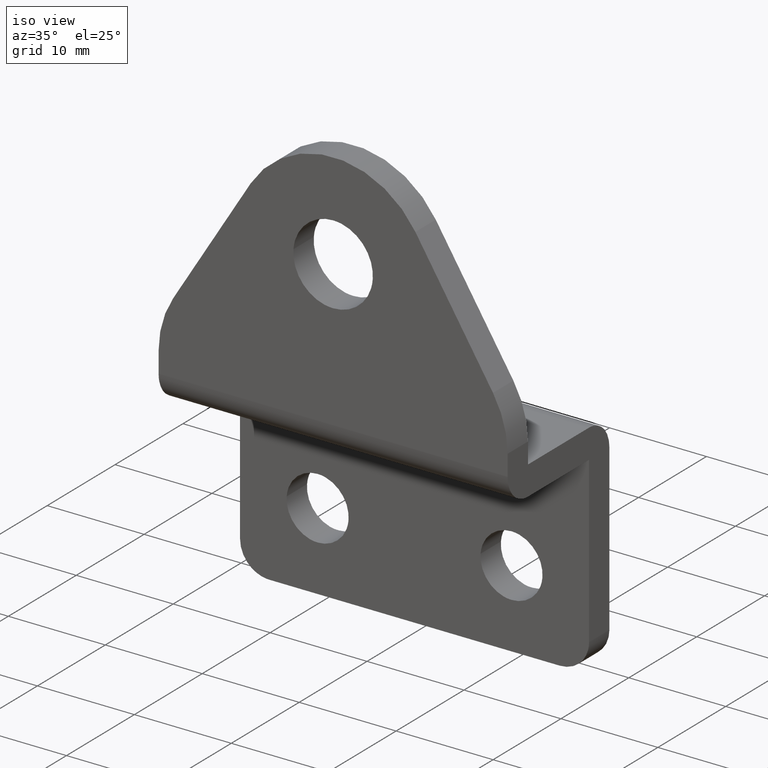
[diagram: clean part render]
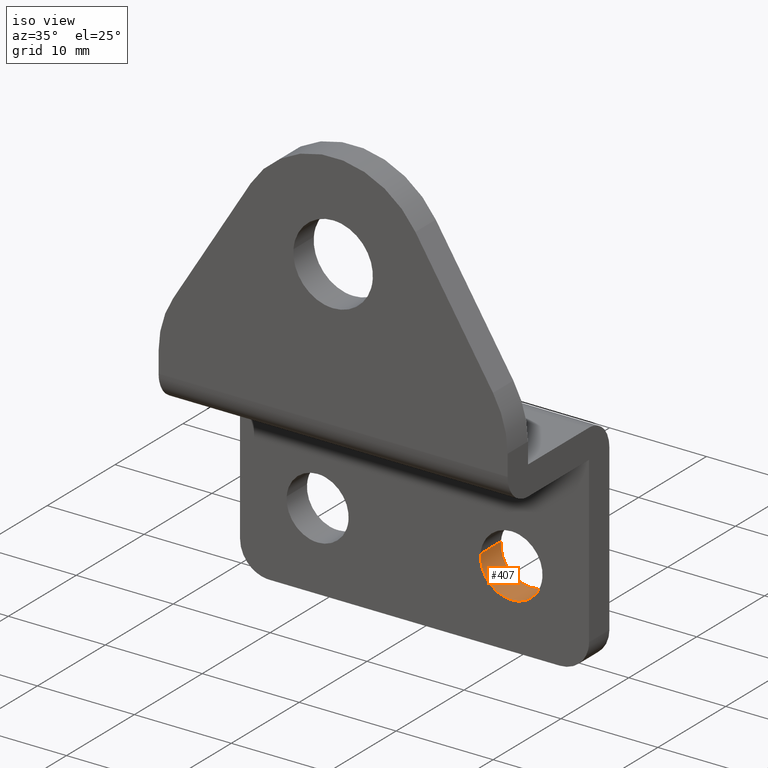
[diagram: same view with one face highlighted and labeled with its STEP entity id]
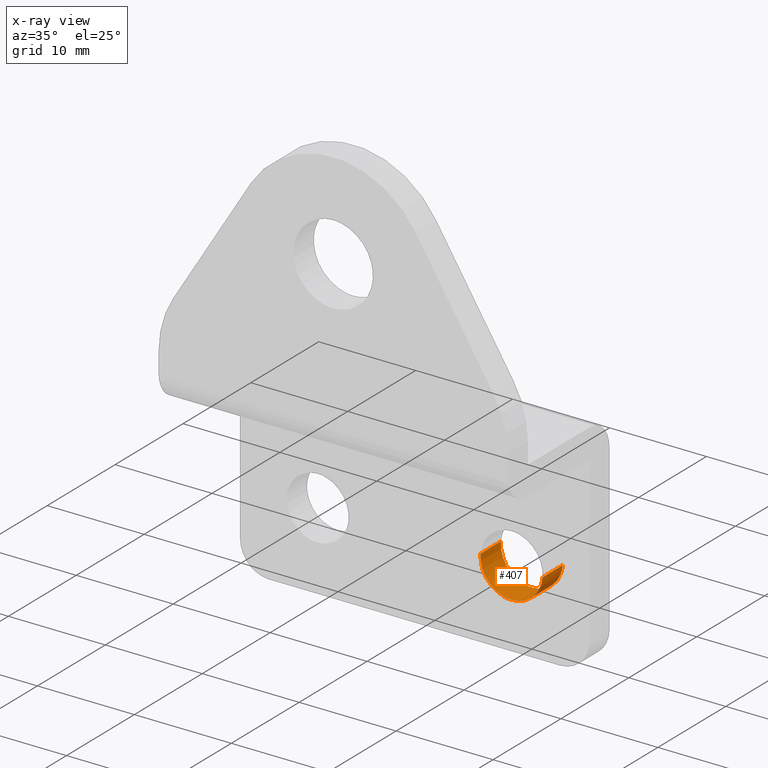
[diagram: x-ray of the same camera — body ghosted, the highlighted face saturated]
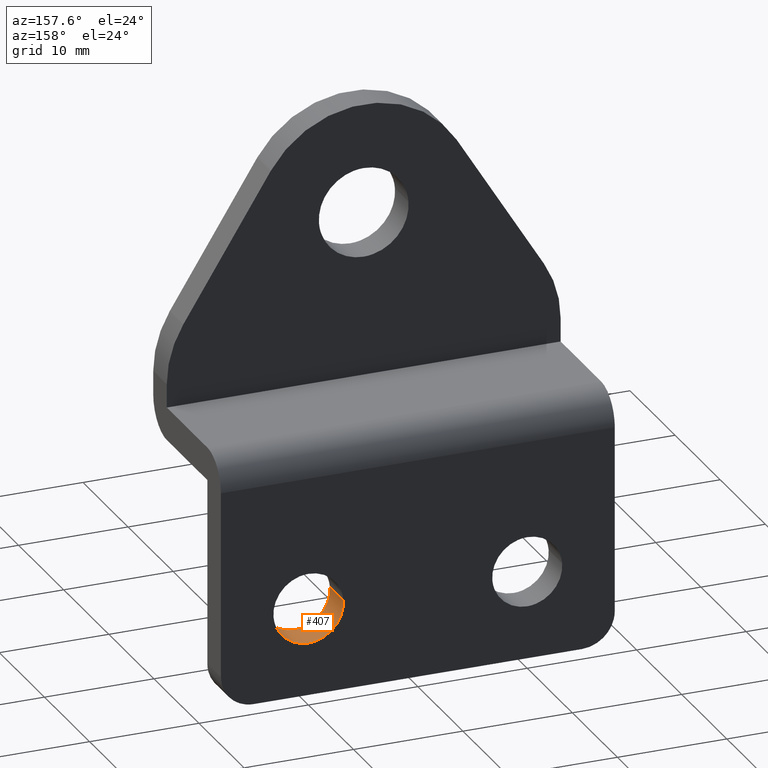
[diagram: same view with one face highlighted and labeled with its STEP entity id]
A machine part, iso view. The second image highlights one B-rep face of the part: STEP entity #407.
The next image is the same camera in x-ray: the body ghosted, the highlighted face saturated — about 0% of this face is hidden behind the body in this view.
A second angle (auxiliary view) of the same face is appended — the face is thin or edge-on in the first view.
In plain terms, the highlighted face is a freeform B-spline surface patch.
Its self-contained STEP definition (entity closure, byte-faithful):
#246=CARTESIAN_POINT('',(6.809864532055734,-3.000000000000116,8.251069106351244));
#247=VERTEX_POINT('',#246);
#261=CARTESIAN_POINT('',(6.809864532055734,-5.551115E-017,8.251069106351244));
#262=VERTEX_POINT('',#261);
#263=CARTESIAN_POINT('',(6.809864532055734,-3.000000000000116,8.251069106351244));
#264=CARTESIAN_POINT('',(6.809864532055734,-5.551115E-017,8.251069106351244));
#265=QUASI_UNIFORM_CURVE('',1,(#263,#264),.UNSPECIFIED.,.F.,.U.);
#266=EDGE_CURVE('',#247,#262,#265,.T.);
#283=CARTESIAN_POINT('',(13.190135467944270,-5.551115E-017,7.748930893648756));
#284=VERTEX_POINT('',#283);
#300=CARTESIAN_POINT('',(13.190135467944270,-3.000000000000116,7.748930893648756));
#301=VERTEX_POINT('',#300);
#302=CARTESIAN_POINT('',(13.190135467944270,-3.000000000000116,7.748930893648756));
#303=CARTESIAN_POINT('',(13.190135467944270,-5.551115E-017,7.748930893648756));
#304=QUASI_UNIFORM_CURVE('',1,(#302,#303),.UNSPECIFIED.,.F.,.U.);
#305=EDGE_CURVE('',#301,#284,#304,.T.);
#325=CARTESIAN_POINT('',(13.190135467946011,-3.075000000000118,7.748930893670894));
#326=CARTESIAN_POINT('',(12.939066361616902,-3.075000000000117,4.558795425724886));
#327=CARTESIAN_POINT('',(9.748930893670895,-3.075000000000118,4.809864532053991));
#328=CARTESIAN_POINT('',(6.558795425724886,-3.075000000000117,5.060933638383096));
#329=CARTESIAN_POINT('',(6.809864532053991,-3.075000000000118,8.251069106329105));
#330=CARTESIAN_POINT('',(13.190135467946011,0.076875000000003,7.748930893670894));
#331=CARTESIAN_POINT('',(12.939066361616902,0.076875000000003,4.558795425724886));
#332=CARTESIAN_POINT('',(9.748930893670895,0.076875000000003,4.809864532053991));
#333=CARTESIAN_POINT('',(6.558795425724886,0.076875000000003,5.060933638383096));
#334=CARTESIAN_POINT('',(6.809864532053991,0.076875000000003,8.251069106329105));
#342=(BOUNDED_SURFACE()B_SPLINE_SURFACE(2,1,((#325,#330),(#326,#331),(#327,#332),(#328,#333),(#329,#334)),.UNSPECIFIED.,.F.,.F.,.U.)B_SPLINE_SURFACE_WITH_KNOTS((3,2,3),(2,2),(0.0,5.301933598375616,10.603867196751230),(0.0,3.151875000000122),.UNSPECIFIED.)GEOMETRIC_REPRESENTATION_ITEM()RATIONAL_B_SPLINE_SURFACE(((1.0,1.0),(0.707106781186548,0.707106781186548),(1.0,1.0),(0.707106781186548,0.707106781186548),(1.0,1.0)))REPRESENTATION_ITEM('')SURFACE());
#343=CARTESIAN_POINT('',(10.0,-3.000000000000115,4.800000000000001));
#344=VERTEX_POINT('',#343);
#345=CARTESIAN_POINT('',(6.809864532055734,-3.000000000000116,8.251069106351244));
#346=CARTESIAN_POINT('',(6.800000000000001,-3.000000000000115,8.125728342446784));
#347=CARTESIAN_POINT('',(6.800000000000001,-3.000000000000115,8.0));
#348=CARTESIAN_POINT('',(6.800000000000002,-3.000000000000115,4.800000000000001));
#349=CARTESIAN_POINT('',(10.0,-3.000000000000115,4.800000000000001));
#357=(BOUNDED_CURVE()B_SPLINE_CURVE(2,(#345,#346,#347,#348,#349),.UNSPECIFIED.,.F.,.U.)B_SPLINE_CURVE_WITH_KNOTS((3,2,3),(0.236331300630387,0.250000000000000,0.500000000000000),.UNSPECIFIED.)CURVE()GEOMETRIC_REPRESENTATION_ITEM()RATIONAL_B_SPLINE_CURVE((0.969723356166850,0.983986122578563,1.0,0.707106781186548,1.0))REPRESENTATION_ITEM(''));
#358=EDGE_CURVE('',#247,#344,#357,.T.);
#359=ORIENTED_EDGE('',*,*,#358,.T.);
#360=CARTESIAN_POINT('',(10.0,-3.000000000000115,4.800000000000001));
#361=CARTESIAN_POINT('',(12.958049573265084,-3.000000000000116,4.800000000000001));
#362=CARTESIAN_POINT('',(13.190135467944266,-3.000000000000116,7.748930893648756));
#370=(BOUNDED_CURVE()B_SPLINE_CURVE(2,(#360,#361,#362),.UNSPECIFIED.,.F.,.U.)B_SPLINE_CURVE_WITH_KNOTS((3,3),(0.500000000000000,0.736331300630388),.UNSPECIFIED.)CURVE()GEOMETRIC_REPRESENTATION_ITEM()RATIONAL_B_SPLINE_CURVE((1.0,0.723120658607984,0.969723356166851))REPRESENTATION_ITEM(''));
#371=EDGE_CURVE('',#344,#301,#370,.T.);
#372=ORIENTED_EDGE('',*,*,#371,.T.);
#373=ORIENTED_EDGE('',*,*,#305,.T.);
#374=CARTESIAN_POINT('',(10.0,0.0,4.800000000000001));
#375=VERTEX_POINT('',#374);
#376=CARTESIAN_POINT('',(10.0,0.0,4.800000000000001));
#377=CARTESIAN_POINT('',(12.958049573265084,0.0,4.800000000000001));
#378=CARTESIAN_POINT('',(13.190135467944266,-5.551115E-017,7.748930893648756));
#386=(BOUNDED_CURVE()B_SPLINE_CURVE(2,(#376,#377,#378),.UNSPECIFIED.,.F.,.U.)B_SPLINE_CURVE_WITH_KNOTS((3,3),(0.500000000000000,0.736331300630388),.UNSPECIFIED.)CURVE()GEOMETRIC_REPRESENTATION_ITEM()RATIONAL_B_SPLINE_CURVE((1.0,0.723120658607984,0.969723356166851))REPRESENTATION_ITEM(''));
#387=EDGE_CURVE('',#375,#284,#386,.T.);
#388=ORIENTED_EDGE('',*,*,#387,.F.);
#389=CARTESIAN_POINT('',(6.809864532055734,-5.551115E-017,8.251069106351244));
#390=CARTESIAN_POINT('',(6.800000000000001,0.0,8.125728342446784));
#391=CARTESIAN_POINT('',(6.800000000000001,0.0,8.0));
#392=CARTESIAN_POINT('',(6.800000000000002,0.0,4.800000000000001));
#393=CARTESIAN_POINT('',(10.0,0.0,4.800000000000001));
#401=(BOUNDED_CURVE()B_SPLINE_CURVE(2,(#389,#390,#391,#392,#393),.UNSPECIFIED.,.F.,.U.)B_SPLINE_CURVE_WITH_KNOTS((3,2,3),(0.236331300630387,0.250000000000000,0.500000000000000),.UNSPECIFIED.)CURVE()GEOMETRIC_REPRESENTATION_ITEM()RATIONAL_B_SPLINE_CURVE((0.969723356166850,0.983986122578563,1.0,0.707106781186548,1.0))REPRESENTATION_ITEM(''));
#402=EDGE_CURVE('',#262,#375,#401,.T.);
#403=ORIENTED_EDGE('',*,*,#402,.F.);
#404=ORIENTED_EDGE('',*,*,#266,.F.);
#405=EDGE_LOOP('',(#359,#372,#373,#388,#403,#404));
#406=FACE_OUTER_BOUND('',#405,.T.);
#407=ADVANCED_FACE('',(#406),#342,.F.);